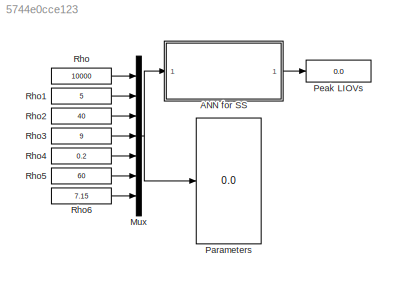
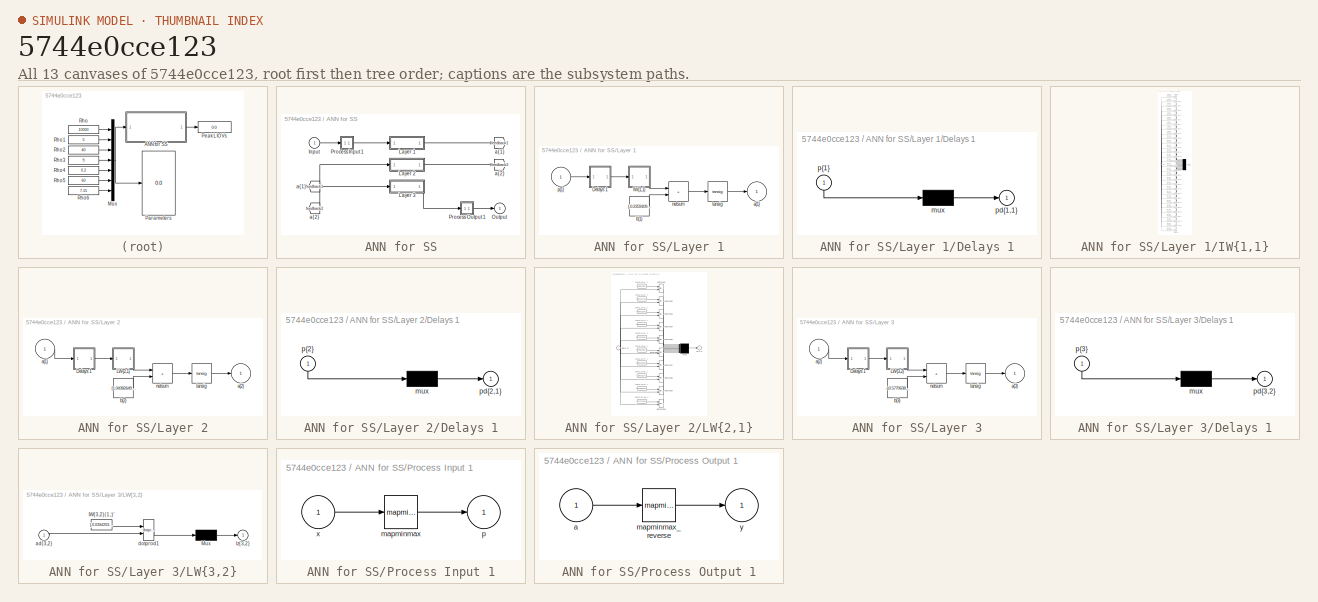
[diagram: thumbnail index - all 13 canvases of the model, root first then tree order]
MODEL slx_5744e0cce123
KIND model
CONFIG AbsTol = auto
CONFIG EnableMultiTasking = off
CONFIG FixedStep = auto
CONFIG MaxStep = auto
CONFIG MinStep = auto
CONFIG RelTol = 1e-3
CONFIG SampleTimeConstraint = Unconstrained
CONFIG Solver = VariableStepAuto
CONFIG SolverName = VariableStepAuto
CONFIG StartTime = 0.0
CONFIG StopTime = 10.0
BLOCK [SubSystem] ANN for SS
  Ports = [1, 1]
  RequestExecContextInheritance = off
BLOCK [From] ANN for SS/ a{1} 
  GotoTag = feedback1
BLOCK [From] ANN for SS/ a{2} 
  GotoTag = feedback2
BLOCK [Inport] ANN for SS/Input
  PortDimensions = 7
BLOCK [SubSystem] ANN for SS/Layer 1
  Ports = [1, 1]
  RequestExecContextInheritance = off
BLOCK [SubSystem] ANN for SS/Layer 1/Delays 1
  Ports = [1, 1]
  RequestExecContextInheritance = off
BLOCK [Mux] ANN for SS/Layer 1/Delays 1/mux
  Inputs = 1
  Ports = [1, 1]
BLOCK [Outport] ANN for SS/Layer 1/Delays 1/pd{1,1}
BLOCK [Inport] ANN for SS/Layer 1/Delays 1/p{1}
  NameLocation = left
  PortDimensions = 7
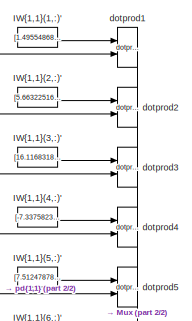
[diagram: ANN for SS/Layer 1/IW{1,1} - part 1/2, top center region]
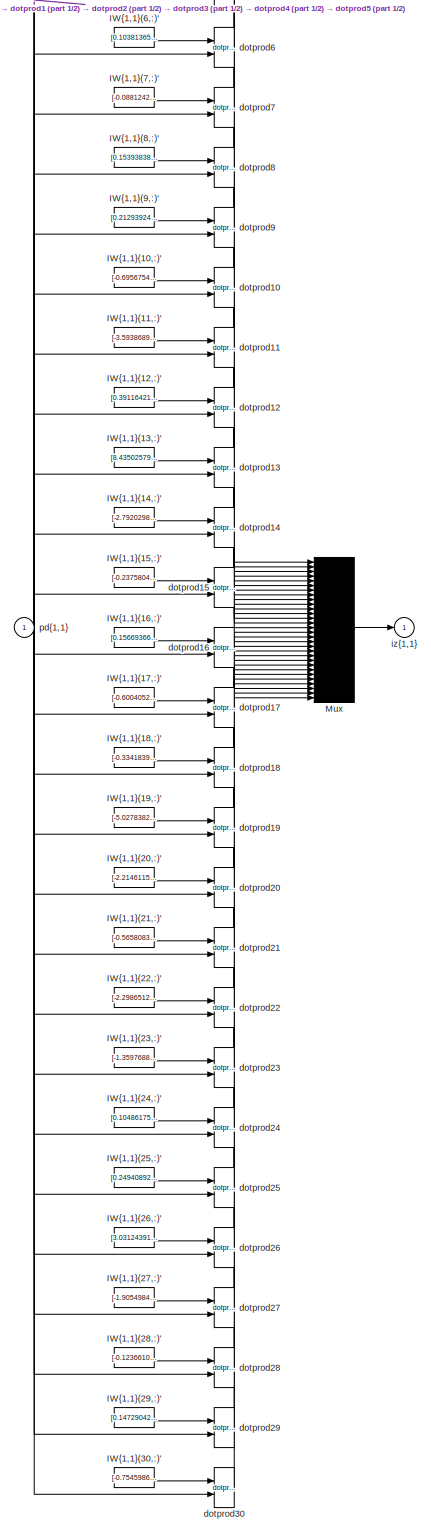
[diagram: ANN for SS/Layer 1/IW{1,1} - part 2/2, most of the canvas]
BLOCK [SubSystem] ANN for SS/Layer 1/IW{1,1}
  Ports = [1, 1]
  RequestExecContextInheritance = off
BLOCK [Constant] ANN for SS/Layer 1/IW{1,1}/IW{1,1}(1,:)'
  Value = [1.49554868627087689247900925693102180957794189453125;0.00806494636037557825758437246577159385196864604949951171875;-0.1785777999905269475267033385534887202084064483642578125;-0.05977408969179176523311980417929589748382568359375;0.0028275709148284059075983964959277727757580578327178955078125;-0.323414127154260933050267112776055000722408294677734375;-0.0067737887125604127891431716079750913195312023...<+13ch>
BLOCK [Constant] ANN for SS/Layer 1/IW{1,1}/IW{1,1}(10,:)'
  Value = [-0.69567541314679759434369543669163249433040618896484375;-0.0251686472821097857732741687186717172153294086456298828125;-1.013679418077692684363455555285327136516571044921875;-0.0856263166234662864706450591256725601851940155029296875;-0.00051681621427435175432363312353345463634468615055084228515625;0.10360973151981951734246223395530250854790210723876953125;-0.00249451759371644007576285240190827607...<+24ch>
BLOCK [Constant] ANN for SS/Layer 1/IW{1,1}/IW{1,1}(11,:)'
  Value = [-3.593868953012437028604608713067136704921722412109375;7.7088835146257235209077407489530742168426513671875;-5.18097107970652981379089396796189248561859130859375;-8.65860252163110288847747142426669597625732421875;-5.17506366085313107561205470119602978229522705078125;-42.68812281959453258650682982988655567169189453125;5.36331997052391074021215899847447872161865234375]
BLOCK [Constant] ANN for SS/Layer 1/IW{1,1}/IW{1,1}(12,:)'
  Value = [0.3911642194506768088757553414325229823589324951171875;2.277417365472901078504719407646916806697845458984375;-1.6553152046329699942361912690103054046630859375;4.412993157645775710307134431786835193634033203125;0.007453174649690329223172824413268244825303554534912109375;5.1606292570775877948108245618641376495361328125;-0.0230133484376430740014907172508173971436917781829833984375]
BLOCK [Constant] ANN for SS/Layer 1/IW{1,1}/IW{1,1}(13,:)'
  Value = [8.4350257988312034029831920634023845195770263671875;20.574373844268318833883313345722854137420654296875;0.827490009074045129722208002931438386440277099609375;2.27667065631839360406729610986076295375823974609375;-0.029510110666101131704497362306938157416880130767822265625;7.92627507952247878364460120792500674724578857421875;0.0007694502747248401809676554563566241995431482791900634765625]
BLOCK [Constant] ANN for SS/Layer 1/IW{1,1}/IW{1,1}(14,:)'
  Value = [-2.79202985676071335774395265616476535797119140625;-0.043632145622370006876611370216778595931828022003173828125;-0.0178253808091444025663019345984139363281428813934326171875;0.00988472915457981084197403021107675158418715000152587890625;-0.00530024832296027183231590385048548341728746891021728515625;0.303023868962135234372823333615087904036045074462890625;-0.1255826455788177642425296198780415579676...<+15ch>
BLOCK [Constant] ANN for SS/Layer 1/IW{1,1}/IW{1,1}(15,:)'
  Value = [-0.2375804274961572648550145459012128412723541259765625;0.09495397157337166771373659912569564767181873321533203125;0.1476334013805371825345247316363384015858173370361328125;0.008858774727746814015016951771031017415225505828857421875;-0.0013613173083243204110337476464565042988397181034088134765625;2.848720583638396419701166450977325439453125;-0.00579125994157197402506520589327010384295135736465454...<+8ch>
BLOCK [Constant] ANN for SS/Layer 1/IW{1,1}/IW{1,1}(16,:)'
  Value = [0.156693668597627067118338572981883771717548370361328125;-0.030923619533131392611569054906794917769730091094970703125;-0.038054647134532361418823853682624758221209049224853515625;-0.074441734742047016570865025641978718340396881103515625;0.0013780150734819655335139376717279446893371641635894775390625;-0.487515791652567365144221867012674920260906219482421875;-0.0018296230537174849439113755167340968...<+26ch>
BLOCK [Constant] ANN for SS/Layer 1/IW{1,1}/IW{1,1}(17,:)'
  Value = [-0.60040524257137606323198042446165345609188079833984375;-0.03939743917869482914273504547963966615498065948486328125;0.1077889585008917350261725687232683412730693817138671875;0.220991437678643876107997812141547910869121551513671875;-0.00341598206629528146349716877239188761450350284576416015625;0.12049729557657580525376062041686964221298694610595703125;0.0027690454142066632525764902084119967184960...<+16ch>
BLOCK [Constant] ANN for SS/Layer 1/IW{1,1}/IW{1,1}(18,:)'
  Value = [-0.334183949566122240337762150375056080520153045654296875;-0.70978718792663830772227129273233003914356231689453125;0.496101295671813158350005323882214725017547607421875;2.305363388476006303307030975702218711376190185546875;0.0034401262450475637855173971502154017798602581024169921875;-2.073680934710261158926414282177574932575225830078125;-0.009452679884372938018399779025457974057644605636596679687...<+2ch>
BLOCK [Constant] ANN for SS/Layer 1/IW{1,1}/IW{1,1}(19,:)'
  Value = [-5.027838224459326710302775609306991100311279296875;1.817329632481860191006717286654748022556304931640625;3.902312320774697251835050337831489741802215576171875;8.319395091995186675148943322710692882537841796875;0.00921270061493954274534079473824021988548338413238525390625;-5.29645984274446579576078875106759369373321533203125;-9.2111627622697849204769227071665227413177490234375]
BLOCK [Constant] ANN for SS/Layer 1/IW{1,1}/IW{1,1}(2,:)'
  Value = [5.66322516267212439089462350239045917987823486328125;-6.12100885813496287113366634002886712551116943359375;0.6109010973920054876629137652344070374965667724609375;0.29209878665008570663985665305517613887786865234375;-0.0303773660627886903096150916780970874242484569549560546875;2.17950106258131715009085382916964590549468994140625;0.15144494192599922133268819379736669361591339111328125]
BLOCK [Constant] ANN for SS/Layer 1/IW{1,1}/IW{1,1}(20,:)'
  Value = [-2.214611504141789755095715008792467415332794189453125;-0.04382559503240994469575042558062705211341381072998046875;-0.036611195210878737238413549448523554019629955291748046875;-0.0020044579718747506692777538006566828698851168155670166015625;0.004788132028868048208070096194433062919415533542633056640625;-0.15361088809467926541429960707318969070911407470703125;0.002383569240003513903247700511656148...<+24ch>
BLOCK [Constant] ANN for SS/Layer 1/IW{1,1}/IW{1,1}(21,:)'
  Value = [-0.56580834933463630687100476279738359153270721435546875;3.4446381460767749871365595026873052120208740234375;1.195300154564093997322515861014835536479949951171875;-2.366396641942567935501529063913039863109588623046875;-0.0182693197072140191272726639226675615645945072174072265625;-2.7489822670579453500749878003261983394622802734375;0.042783802840655672794500929967398406006395816802978515625]
BLOCK [Constant] ANN for SS/Layer 1/IW{1,1}/IW{1,1}(22,:)'
  Value = [-2.298651270892893894171038482454605400562286376953125;-0.036947625014021885647697018839608062990009784698486328125;-0.039273323955870333146211947905612760223448276519775390625;0.049478192678779724100746051362875732593238353729248046875;0.005030393981499387164035841379927660454995930194854736328125;0.08667694416601146034651037552976049482822418212890625;0.00330521545551510330385180935763855814002...<+19ch>
BLOCK [Constant] ANN for SS/Layer 1/IW{1,1}/IW{1,1}(23,:)'
  Value = [-1.3597688942989216709378297309740446507930755615234375;-0.2006502188761534466454605762919527478516101837158203125;0.271984216658221422679986289949738420546054840087890625;0.0288614636510402429447896821557151270098984241485595703125;0.0035487876800090502327211794408867717720568180084228515625;0.7168241535125481345147591127897612750530242919921875;0.056244593836548145704412604573008138686418533325...<+8ch>
BLOCK [Constant] ANN for SS/Layer 1/IW{1,1}/IW{1,1}(24,:)'
  Value = [0.10486175347694083603844461549670086242258548736572265625;-0.05779780108128484972240812567179091274738311767578125;0.9044081873358285061925698755658231675624847412109375;0.007322189939422030398319396482520460267551243305206298828125;-7.5818824584100407413568556425076394589268602430820465087890625e-05;-0.10698899294501994228223651361986412666738033294677734375;0.0025384283780816906464505855467450...<+27ch>
BLOCK [Constant] ANN for SS/Layer 1/IW{1,1}/IW{1,1}(25,:)'
  Value = [0.2494089279430286298921970455921837128698825836181640625;4.4952637199478306939681715448386967182159423828125;5.5312892990272199966739208321087062358856201171875;0.043830472809258225197481806389987468719482421875;-0.0024564433676137610411405187704758645850233733654022216796875;-0.015100593870586827283108988240201142616569995880126953125;0.0211321506586187139731247697227445314638316631317138671875...<+1ch>
BLOCK [Constant] ANN for SS/Layer 1/IW{1,1}/IW{1,1}(26,:)'
  Value = [3.031243912774581161784226424060761928558349609375;0.050755711076085056887574609163493732921779155731201171875;0.0137863781761874727715966315599871450103819370269775390625;-0.014675725525736982302049682402866892516613006591796875;0.005189198823812253558163121169855003245174884796142578125;-0.36954923390439919916872213434544391930103302001953125;0.13870181522131785900597833460778929293155670166015...<+4ch>
BLOCK [Constant] ANN for SS/Layer 1/IW{1,1}/IW{1,1}(27,:)'
  Value = [-1.905498492454689607455975419725291430950164794921875;-10.3525333311431193550333773600868880748748779296875;-11.7669072051402689993437888915650546550750732421875;-5.94959042984753683214194097672589123249053955078125;-0.01260853272741300525050522907122285687364637851715087890625;-2.264294611408657953433021248201839625835418701171875;0.0195814561505364380378235722446333966217935085296630859375]
BLOCK [Constant] ANN for SS/Layer 1/IW{1,1}/IW{1,1}(28,:)'
  Value = [-0.123661022764746497681898063092376105487346649169921875;0.0237797196834568236312179578817449510097503662109375;0.0219958569300194028972583737413515336811542510986328125;0.10242674839646324913555730518055497668683528900146484375;-0.0009736894125372866880263611477630547597073018550872802734375;0.3736605107473083275948511072783730924129486083984375;0.00061620999424536089528192661646244232542812824...<+13ch>
BLOCK [Constant] ANN for SS/Layer 1/IW{1,1}/IW{1,1}(29,:)'
  Value = [0.1472904263510081135368778859628946520388126373291015625;-0.319248871641658882314374068300821818411350250244140625;-0.348007407029615745130968207377009093761444091796875;0.0308074929647929908471670756853200145997107028961181640625;-0.0018536410533082476291555362735152812092565000057220458984375;-0.139638304097367493827874795897514559328556060791015625;0.011221358081694835645558683268063759896904...<+17ch>
BLOCK [Constant] ANN for SS/Layer 1/IW{1,1}/IW{1,1}(3,:)'
  Value = [16.11683187159434993418472004123032093048095703125;-6.27773040884411681616938949446193873882293701171875;15.4304490810079126816845018765889108180999755859375;-0.127348135929513162079018684380571357905864715576171875;-0.221583447404342048780989671286079101264476776123046875;-6.786623706181462267750248429365456104278564453125;0.1289792973670374209849143198880483396351337432861328125]
BLOCK [Constant] ANN for SS/Layer 1/IW{1,1}/IW{1,1}(30,:)'
  Value = [-0.75459860303721415508704239982762373983860015869140625;-3.218821680767816939550129973213188350200653076171875;4.8100766134366903514774094219319522380828857421875;-9.667813125381830019478002213872969150543212890625;-2.571862296036548922728570687468163669109344482421875;-2.639825523102522719653961758012883365154266357421875;8.6450965106753674405126730562187731266021728515625]
BLOCK [Constant] ANN for SS/Layer 1/IW{1,1}/IW{1,1}(4,:)'
  Value = [-7.33758239026838854357492891722358763217926025390625;-19.972028481665180521531510748900473117828369140625;16.019672463349248658914802945218980312347412109375;9.1618881680668895484132008277811110019683837890625;-15.509332718210853130358373164199292659759521484375;7.944514263367640438673333846963942050933837890625;23.293163609171958938759416923858225345611572265625]
BLOCK [Constant] ANN for SS/Layer 1/IW{1,1}/IW{1,1}(5,:)'
  Value = [7.51247878322758300129180497606284916400909423828125;0.045464768307096385668852889239133219234645366668701171875;-0.00178027459695432872625875386773941499995999038219451904296875;-0.03078857718710004132134372412110678851604461669921875;0.037033787499848737356789030172876664437353610992431640625;3.92310658266647838132712422520853579044342041015625;-0.27245052810403003196171312083606608211994171142...<+7ch>
BLOCK [Constant] ANN for SS/Layer 1/IW{1,1}/IW{1,1}(6,:)'
  Value = [0.10381365303922839016248502730377367697656154632568359375;-0.01994738498192283326915230645681731402873992919921875;-0.0164303977758037990375417081168052391149103641510009765625;-0.12299102269465035652817874733955250121653079986572265625;0.000859951951773019521683971699843596070422790944576263427734375;-0.31888476714530711308981381080229766666889190673828125;-0.00038420759338323340770920966136259...<+29ch>
BLOCK [Constant] ANN for SS/Layer 1/IW{1,1}/IW{1,1}(7,:)'
  Value = [-0.08812420278099640513769230665275244973599910736083984375;-0.149246792134495376291880575081449933350086212158203125;-0.08221010931740353744334726115994271822273731231689453125;0.010648734548538658917227195388477412052452564239501953125;0.000711968153606370893031474178513917649979703128337860107421875;1.4580611080639347409970696389791555702686309814453125;0.00331136493010659180638577403499311913...<+24ch>
BLOCK [Constant] ANN for SS/Layer 1/IW{1,1}/IW{1,1}(8,:)'
  Value = [0.1539383878929213300690292953731841407716274261474609375;0.6351418926519585284040658734738826751708984375;-5.74947269254340387334423212450928986072540283203125;-0.022295848778761222230837546476323041133582592010498046875;-0.0056235683443172368445317488294676877558231353759765625;0.08264639804833347203061322261419263668358325958251953125;-0.01163944769190147082715824922161118593066930770874023437...<+2ch>
BLOCK [Constant] ANN for SS/Layer 1/IW{1,1}/IW{1,1}(9,:)'
  Value = [0.2129392440066982528090733239878318272531032562255859375;0.08377999291040738594205095068900845944881439208984375;-0.075744145746537150376553881869767792522907257080078125;-0.250953675653530716704864289567922241985797882080078125;0.0002462091802751895249466718151865052277571521699428558349609375;-1.055138415923056793843670675414614379405975341796875;0.006141537631832125546105238811378512764349579...<+15ch>
BLOCK [Mux] ANN for SS/Layer 1/IW{1,1}/Mux
  Inputs = 30
  Ports = [30, 1]
BLOCK [Reference] ANN for SS/Layer 1/IW{1,1}/dotprod1  REF=neural/Weight Functions/dotprod
  Ports = [2, 1]
  SourceBlock = neural/Weight Functions/dotprod
  SourceProductBaseCode = NN
  SourceType = DOTPROD
BLOCK [Reference] ANN for SS/Layer 1/IW{1,1}/dotprod10  REF=neural/Weight Functions/dotprod
  Ports = [2, 1]
  SourceBlock = neural/Weight Functions/dotprod
  SourceProductBaseCode = NN
  SourceType = DOTPROD
BLOCK [Reference] ANN for SS/Layer 1/IW{1,1}/dotprod11  REF=neural/Weight Functions/dotprod
  Ports = [2, 1]
  SourceBlock = neural/Weight Functions/dotprod
  SourceProductBaseCode = NN
  SourceType = DOTPROD
BLOCK [Reference] ANN for SS/Layer 1/IW{1,1}/dotprod12  REF=neural/Weight Functions/dotprod
  Ports = [2, 1]
  SourceBlock = neural/Weight Functions/dotprod
  SourceProductBaseCode = NN
  SourceType = DOTPROD
BLOCK [Reference] ANN for SS/Layer 1/IW{1,1}/dotprod13  REF=neural/Weight Functions/dotprod
  Ports = [2, 1]
  SourceBlock = neural/Weight Functions/dotprod
  SourceProductBaseCode = NN
  SourceType = DOTPROD
BLOCK [Reference] ANN for SS/Layer 1/IW{1,1}/dotprod14  REF=neural/Weight Functions/dotprod
  Ports = [2, 1]
  SourceBlock = neural/Weight Functions/dotprod
  SourceProductBaseCode = NN
  SourceType = DOTPROD
BLOCK [Reference] ANN for SS/Layer 1/IW{1,1}/dotprod15  REF=neural/Weight Functions/dotprod
  Ports = [2, 1]
  SourceBlock = neural/Weight Functions/dotprod
  SourceProductBaseCode = NN
  SourceType = DOTPROD
BLOCK [Reference] ANN for SS/Layer 1/IW{1,1}/dotprod16  REF=neural/Weight Functions/dotprod
  Ports = [2, 1]
  SourceBlock = neural/Weight Functions/dotprod
  SourceProductBaseCode = NN
  SourceType = DOTPROD
BLOCK [Reference] ANN for SS/Layer 1/IW{1,1}/dotprod17  REF=neural/Weight Functions/dotprod
  Ports = [2, 1]
  SourceBlock = neural/Weight Functions/dotprod
  SourceProductBaseCode = NN
  SourceType = DOTPROD
BLOCK [Reference] ANN for SS/Layer 1/IW{1,1}/dotprod18  REF=neural/Weight Functions/dotprod
  Ports = [2, 1]
  SourceBlock = neural/Weight Functions/dotprod
  SourceProductBaseCode = NN
  SourceType = DOTPROD
BLOCK [Reference] ANN for SS/Layer 1/IW{1,1}/dotprod19  REF=neural/Weight Functions/dotprod
  Ports = [2, 1]
  SourceBlock = neural/Weight Functions/dotprod
  SourceProductBaseCode = NN
  SourceType = DOTPROD
BLOCK [Reference] ANN for SS/Layer 1/IW{1,1}/dotprod2  REF=neural/Weight Functions/dotprod
  Ports = [2, 1]
  SourceBlock = neural/Weight Functions/dotprod
  SourceProductBaseCode = NN
  SourceType = DOTPROD
BLOCK [Reference] ANN for SS/Layer 1/IW{1,1}/dotprod20  REF=neural/Weight Functions/dotprod
  Ports = [2, 1]
  SourceBlock = neural/Weight Functions/dotprod
  SourceProductBaseCode = NN
  SourceType = DOTPROD
BLOCK [Reference] ANN for SS/Layer 1/IW{1,1}/dotprod21  REF=neural/Weight Functions/dotprod
  Ports = [2, 1]
  SourceBlock = neural/Weight Functions/dotprod
  SourceProductBaseCode = NN
  SourceType = DOTPROD
BLOCK [Reference] ANN for SS/Layer 1/IW{1,1}/dotprod22  REF=neural/Weight Functions/dotprod
  Ports = [2, 1]
  SourceBlock = neural/Weight Functions/dotprod
  SourceProductBaseCode = NN
  SourceType = DOTPROD
BLOCK [Reference] ANN for SS/Layer 1/IW{1,1}/dotprod23  REF=neural/Weight Functions/dotprod
  Ports = [2, 1]
  SourceBlock = neural/Weight Functions/dotprod
  SourceProductBaseCode = NN
  SourceType = DOTPROD
BLOCK [Reference] ANN for SS/Layer 1/IW{1,1}/dotprod24  REF=neural/Weight Functions/dotprod
  Ports = [2, 1]
  SourceBlock = neural/Weight Functions/dotprod
  SourceProductBaseCode = NN
  SourceType = DOTPROD
BLOCK [Reference] ANN for SS/Layer 1/IW{1,1}/dotprod25  REF=neural/Weight Functions/dotprod
  Ports = [2, 1]
  SourceBlock = neural/Weight Functions/dotprod
  SourceProductBaseCode = NN
  SourceType = DOTPROD
BLOCK [Reference] ANN for SS/Layer 1/IW{1,1}/dotprod26  REF=neural/Weight Functions/dotprod
  Ports = [2, 1]
  SourceBlock = neural/Weight Functions/dotprod
  SourceProductBaseCode = NN
  SourceType = DOTPROD
BLOCK [Reference] ANN for SS/Layer 1/IW{1,1}/dotprod27  REF=neural/Weight Functions/dotprod
  Ports = [2, 1]
  SourceBlock = neural/Weight Functions/dotprod
  SourceProductBaseCode = NN
  SourceType = DOTPROD
BLOCK [Reference] ANN for SS/Layer 1/IW{1,1}/dotprod28  REF=neural/Weight Functions/dotprod
  Ports = [2, 1]
  SourceBlock = neural/Weight Functions/dotprod
  SourceProductBaseCode = NN
  SourceType = DOTPROD
BLOCK [Reference] ANN for SS/Layer 1/IW{1,1}/dotprod29  REF=neural/Weight Functions/dotprod
  Ports = [2, 1]
  SourceBlock = neural/Weight Functions/dotprod
  SourceProductBaseCode = NN
  SourceType = DOTPROD
BLOCK [Reference] ANN for SS/Layer 1/IW{1,1}/dotprod3  REF=neural/Weight Functions/dotprod
  Ports = [2, 1]
  SourceBlock = neural/Weight Functions/dotprod
  SourceProductBaseCode = NN
  SourceType = DOTPROD
BLOCK [Reference] ANN for SS/Layer 1/IW{1,1}/dotprod30  REF=neural/Weight Functions/dotprod
  Ports = [2, 1]
  SourceBlock = neural/Weight Functions/dotprod
  SourceProductBaseCode = NN
  SourceType = DOTPROD
BLOCK [Reference] ANN for SS/Layer 1/IW{1,1}/dotprod4  REF=neural/Weight Functions/dotprod
  Ports = [2, 1]
  SourceBlock = neural/Weight Functions/dotprod
  SourceProductBaseCode = NN
  SourceType = DOTPROD
BLOCK [Reference] ANN for SS/Layer 1/IW{1,1}/dotprod5  REF=neural/Weight Functions/dotprod
  Ports = [2, 1]
  SourceBlock = neural/Weight Functions/dotprod
  SourceProductBaseCode = NN
  SourceType = DOTPROD
BLOCK [Reference] ANN for SS/Layer 1/IW{1,1}/dotprod6  REF=neural/Weight Functions/dotprod
  Ports = [2, 1]
  SourceBlock = neural/Weight Functions/dotprod
  SourceProductBaseCode = NN
  SourceType = DOTPROD
BLOCK [Reference] ANN for SS/Layer 1/IW{1,1}/dotprod7  REF=neural/Weight Functions/dotprod
  Ports = [2, 1]
  SourceBlock = neural/Weight Functions/dotprod
  SourceProductBaseCode = NN
  SourceType = DOTPROD
BLOCK [Reference] ANN for SS/Layer 1/IW{1,1}/dotprod8  REF=neural/Weight Functions/dotprod
  Ports = [2, 1]
  SourceBlock = neural/Weight Functions/dotprod
  SourceProductBaseCode = NN
  SourceType = DOTPROD
BLOCK [Reference] ANN for SS/Layer 1/IW{1,1}/dotprod9  REF=neural/Weight Functions/dotprod
  Ports = [2, 1]
  SourceBlock = neural/Weight Functions/dotprod
  SourceProductBaseCode = NN
  SourceType = DOTPROD
BLOCK [Outport] ANN for SS/Layer 1/IW{1,1}/iz{1,1}
BLOCK [Inport] ANN for SS/Layer 1/IW{1,1}/pd{1,1}
  PortDimensions = 7
BLOCK [Outport] ANN for SS/Layer 1/a{1}
  InitialOutput = [0;0;0;0;0;0;0;0;0;0;0;0;0;0;0;0;0;0;0;0;0;0;0;0;0;0;0;0;0;0]
BLOCK [Constant] ANN for SS/Layer 1/b{1}
  Value = [-0.235910918970484662082753857248462736606597900390625;-1.4219760800927023769446577716735191643238067626953125;-15.2151872164939536702377154142595827579498291015625;19.2422149276300018527763313613831996917724609375;10.955083410908184049503688584081828594207763671875;-0.327499748631396858655762116541154682636260986328125;1.3797754291312340768627109355293214321136474609375;-5.3489889780558019793943...<+1233ch>
BLOCK [Sum] ANN for SS/Layer 1/netsum
  IconShape = rectangular
  InputSameDT = on
  Inputs = 2
  OutDataTypeStr = Inherit: Same as first input
  Ports = [2, 1]
  SaturateOnIntegerOverflow = on
BLOCK [Inport] ANN for SS/Layer 1/p{1}
  PortDimensions = 7
BLOCK [Reference] ANN for SS/Layer 1/tansig  REF=neural/Transfer Functions/tansig
  Ports = [1, 1]
  SourceBlock = neural/Transfer Functions/tansig
  SourceProductBaseCode = NN
  SourceType = TANSIG
BLOCK [SubSystem] ANN for SS/Layer 2
  Ports = [1, 1]
  RequestExecContextInheritance = off
BLOCK [SubSystem] ANN for SS/Layer 2/Delays 1
  Ports = [1, 1]
  RequestExecContextInheritance = off
BLOCK [Mux] ANN for SS/Layer 2/Delays 1/mux
  Inputs = 1
  Ports = [1, 1]
BLOCK [Outport] ANN for SS/Layer 2/Delays 1/pd{2,1}
BLOCK [Inport] ANN for SS/Layer 2/Delays 1/p{2}
  NameLocation = left
  PortDimensions = 30
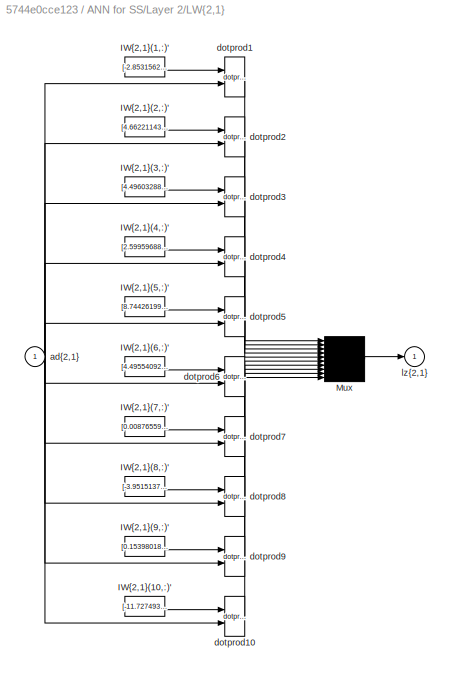
BLOCK [SubSystem] ANN for SS/Layer 2/LW{2,1}
  Ports = [1, 1]
  RequestExecContextInheritance = off
BLOCK [Constant] ANN for SS/Layer 2/LW{2,1}/IW{2,1}(1,:)'
  Value = [-2.853156258780404019859133768477477133274078369140625;-0.1026691830964931162473163794857100583612918853759765625;-1.275256679580755392322544139460660517215728759765625;-0.0166714696396539664713376538429656648077070713043212890625;-0.3426718447108247911359057980007492005825042724609375;6.16014385487027826826533782877959311008453369140625;1.33065413400041610003654568572528660297393798828125;0.8300...<+1273ch>
BLOCK [Constant] ANN for SS/Layer 2/LW{2,1}/IW{2,1}(10,:)'
  Value = [-11.7274939872978425370320110232569277286529541015625;-0.004414783782780464828354727302439641789533197879791259765625;-9.7318584864202275497291338979266583919525146484375;0.00091182929779463580723108950820687823579646646976470947265625;-0.0307112504419843231062703381439860095269978046417236328125;-2.615666930582442706310075664077885448932647705078125;0.08836439570318327385578527355391997843980789...<+1354ch>
BLOCK [Constant] ANN for SS/Layer 2/LW{2,1}/IW{2,1}(2,:)'
  Value = [4.6622114336972142467629964812658727169036865234375;-5.23013113772971127701794102904386818408966064453125;-0.80637080055020982083391345440759323537349700927734375;12.36066948501846951558036380447447299957275390625;-10.971025797858995787237290642224252223968505859375;-0.0191556251510717479025203147102729417383670806884765625;4.24596726531306245533414767123758792877197265625;7.538531819490904339886...<+1222ch>
BLOCK [Constant] ANN for SS/Layer 2/LW{2,1}/IW{2,1}(3,:)'
  Value = [4.49603288961518021693564151064492762088775634765625;0.142991561423157609311829219223000109195709228515625;-0.0020556502903730316210439976742918588570319116115570068359375;4.19375163487967361091758589086708752802223898470401763916015625e-05;10.054414567994317764032530249096453189849853515625;7.1609233868907011810733820311725139617919921875;-15.9476161634836746117116490495391190052032470703125;0.4...<+1278ch>
BLOCK [Constant] ANN for SS/Layer 2/LW{2,1}/IW{2,1}(4,:)'
  Value = [2.59959688312526093767473867046646773815155029296875;-14.8720461405588508796427049674093723297119140625;0.82097865517990609163234694278798997402191162109375;-0.026367115053857061168773867620984674431383609771728515625;5.339127691753322579870655317790806293487548828125;-6.9972188433717139588452482712455093860626220703125;5.17521781800965730013786014751531183719635009765625;-1.222095852315344455263...<+1230ch>
BLOCK [Constant] ANN for SS/Layer 2/LW{2,1}/IW{2,1}(5,:)'
  Value = [8.7442619946240807138337913784198462963104248046875;-0.662041617098784396233668303466401994228363037109375;-1.221994764357258844711395795457065105438232421875;0.365838169267583890320594264267128892242908477783203125;4.9432676602920491149006920750252902507781982421875;-2.193223710261219761008533168933354318141937255859375;8.7699346863394538331704097799956798553466796875;-2.418163701547158428439843...<+1206ch>
BLOCK [Constant] ANN for SS/Layer 2/LW{2,1}/IW{2,1}(6,:)'
  Value = [4.4955409260587533282205185969360172748565673828125;0.1431537620759889273269749310202314518392086029052734375;-0.001962231950858321812003470796526016783900558948516845703125;0.000102169277801985927396459519211902033930527977645397186279296875;2.52795306641441452910612497362308204174041748046875;6.944513620046336654922924935817718505859375;-15.9488975538291075650931816198863089084625244140625;0.43...<+1271ch>
BLOCK [Constant] ANN for SS/Layer 2/LW{2,1}/IW{2,1}(7,:)'
  Value = [0.00876559019644300614626519774219559621997177600860595703125;-3.84796166511583201505670992492724735711817629635334014892578125e-05;4.71665299306254386969838865439896835596300661563873291015625e-05;-0.000174402290244651705757028548049447636003606021404266357421875;-0.00563470381349687708671947206084951176308095455169677734375;-1.23041714945566749150884788832627236843109130859375;-0.00696219016673...<+1513ch>
BLOCK [Constant] ANN for SS/Layer 2/LW{2,1}/IW{2,1}(8,:)'
  Value = [-3.95151376134179965760040431632660329341888427734375;-5.8811817366356589076303862384520471096038818359375;3.13151142222966161199337875586934387683868408203125;5.5978507619981296983269203337840735912322998046875;8.1740553609100938814435721724294126033782958984375;3.339863876181686119792857425636611878871917724609375;-5.2518976589041717062400493887253105640411376953125;2.23267510924129641836088921...<+1214ch>
BLOCK [Constant] ANN for SS/Layer 2/LW{2,1}/IW{2,1}(9,:)'
  Value = [0.153980184794537178216700112898251973092555999755859375;-0.00277478882939949551833525021038440172560513019561767578125;-0.00177497969212335438525529607289854538976214826107025146484375;-0.000201674811593112045422782063752720205229707062244415283203125;-1.8037013626778699570962771758786402642726898193359375;-3.715070867799260323494081603712402284145355224609375;-1.56693128970321660098363736324245...<+1348ch>
BLOCK [Mux] ANN for SS/Layer 2/LW{2,1}/Mux
  Inputs = 10
  Ports = [10, 1]
BLOCK [Inport] ANN for SS/Layer 2/LW{2,1}/ad{2,1}
  PortDimensions = 30
BLOCK [Reference] ANN for SS/Layer 2/LW{2,1}/dotprod1  REF=neural/Weight Functions/dotprod
  Ports = [2, 1]
  SourceBlock = neural/Weight Functions/dotprod
  SourceProductBaseCode = NN
  SourceType = DOTPROD
BLOCK [Reference] ANN for SS/Layer 2/LW{2,1}/dotprod10  REF=neural/Weight Functions/dotprod
  Ports = [2, 1]
  SourceBlock = neural/Weight Functions/dotprod
  SourceProductBaseCode = NN
  SourceType = DOTPROD
BLOCK [Reference] ANN for SS/Layer 2/LW{2,1}/dotprod2  REF=neural/Weight Functions/dotprod
  Ports = [2, 1]
  SourceBlock = neural/Weight Functions/dotprod
  SourceProductBaseCode = NN
  SourceType = DOTPROD
BLOCK [Reference] ANN for SS/Layer 2/LW{2,1}/dotprod3  REF=neural/Weight Functions/dotprod
  Ports = [2, 1]
  SourceBlock = neural/Weight Functions/dotprod
  SourceProductBaseCode = NN
  SourceType = DOTPROD
BLOCK [Reference] ANN for SS/Layer 2/LW{2,1}/dotprod4  REF=neural/Weight Functions/dotprod
  Ports = [2, 1]
  SourceBlock = neural/Weight Functions/dotprod
  SourceProductBaseCode = NN
  SourceType = DOTPROD
BLOCK [Reference] ANN for SS/Layer 2/LW{2,1}/dotprod5  REF=neural/Weight Functions/dotprod
  Ports = [2, 1]
  SourceBlock = neural/Weight Functions/dotprod
  SourceProductBaseCode = NN
  SourceType = DOTPROD
BLOCK [Reference] ANN for SS/Layer 2/LW{2,1}/dotprod6  REF=neural/Weight Functions/dotprod
  Ports = [2, 1]
  SourceBlock = neural/Weight Functions/dotprod
  SourceProductBaseCode = NN
  SourceType = DOTPROD
BLOCK [Reference] ANN for SS/Layer 2/LW{2,1}/dotprod7  REF=neural/Weight Functions/dotprod
  Ports = [2, 1]
  SourceBlock = neural/Weight Functions/dotprod
  SourceProductBaseCode = NN
  SourceType = DOTPROD
BLOCK [Reference] ANN for SS/Layer 2/LW{2,1}/dotprod8  REF=neural/Weight Functions/dotprod
  Ports = [2, 1]
  SourceBlock = neural/Weight Functions/dotprod
  SourceProductBaseCode = NN
  SourceType = DOTPROD
BLOCK [Reference] ANN for SS/Layer 2/LW{2,1}/dotprod9  REF=neural/Weight Functions/dotprod
  Ports = [2, 1]
  SourceBlock = neural/Weight Functions/dotprod
  SourceProductBaseCode = NN
  SourceType = DOTPROD
BLOCK [Outport] ANN for SS/Layer 2/LW{2,1}/lz{2,1}
BLOCK [Inport] ANN for SS/Layer 2/a{1} 
  PortDimensions = 30
BLOCK [Outport] ANN for SS/Layer 2/a{2}
  InitialOutput = [0;0;0;0;0;0;0;0;0;0]
BLOCK [Constant] ANN for SS/Layer 2/b{2}
  Value = [1.043826497897922589430663720122538506984710693359375;-14.2044125305648893942134236567653715610504150390625;3.92961486034806117828566129901446402072906494140625;6.356425516442126166793968877755105495452880859375;-1.204898141700317726332514212117530405521392822265625;13.38854793438468959720921702682971954345703125;0.7038148055903608035777097029495052993297576904296875;-9.74546564512664659218899032...<+131ch>
BLOCK [Sum] ANN for SS/Layer 2/netsum
  IconShape = rectangular
  InputSameDT = on
  Inputs = 2
  OutDataTypeStr = Inherit: Same as first input
  Ports = [2, 1]
  SaturateOnIntegerOverflow = on
BLOCK [Reference] ANN for SS/Layer 2/tansig  REF=neural/Transfer Functions/tansig
  Ports = [1, 1]
  SourceBlock = neural/Transfer Functions/tansig
  SourceProductBaseCode = NN
  SourceType = TANSIG
BLOCK [SubSystem] ANN for SS/Layer 3
  Ports = [1, 1]
  RequestExecContextInheritance = off
BLOCK [SubSystem] ANN for SS/Layer 3/Delays 1
  Ports = [1, 1]
  RequestExecContextInheritance = off
BLOCK [Mux] ANN for SS/Layer 3/Delays 1/mux
  Inputs = 1
  Ports = [1, 1]
BLOCK [Outport] ANN for SS/Layer 3/Delays 1/pd{3,2}
BLOCK [Inport] ANN for SS/Layer 3/Delays 1/p{3}
  NameLocation = left
  PortDimensions = 10
BLOCK [SubSystem] ANN for SS/Layer 3/LW{3,2}
  Ports = [1, 1]
  RequestExecContextInheritance = off
BLOCK [Constant] ANN for SS/Layer 3/LW{3,2}/IW{3,2}(1,:)'
  Value = [-0.039420349501208797049489618302686722017824649810791015625;0.0026026766100730306698063376558138770633377134799957275390625;-21.368569471469218257198008359409868717193603515625;-0.01189785446411842188829677269268358941189944744110107421875;-0.000796864541413190748120332074222460505552589893341064453125;21.368443675299857886784593574702739715576171875;21.563269076820279934736390714533627033233642...<+175ch>
BLOCK [Mux] ANN for SS/Layer 3/LW{3,2}/Mux
  Inputs = 1
  Ports = [1, 1]
BLOCK [Inport] ANN for SS/Layer 3/LW{3,2}/ad{3,2}
  PortDimensions = 10
BLOCK [Reference] ANN for SS/Layer 3/LW{3,2}/dotprod1  REF=neural/Weight Functions/dotprod
  Ports = [2, 1]
  SourceBlock = neural/Weight Functions/dotprod
  SourceProductBaseCode = NN
  SourceType = DOTPROD
BLOCK [Outport] ANN for SS/Layer 3/LW{3,2}/lz{3,2}
BLOCK [Inport] ANN for SS/Layer 3/a{2} 
  PortDimensions = 10
BLOCK [Outport] ANN for SS/Layer 3/a{3}
  InitialOutput = 0
BLOCK [Constant] ANN for SS/Layer 3/b{3}
  Value = -10.5770638451759690923381640459410846233367919921875
BLOCK [Sum] ANN for SS/Layer 3/netsum
  IconShape = rectangular
  InputSameDT = on
  Inputs = 2
  OutDataTypeStr = Inherit: Same as first input
  Ports = [2, 1]
  SaturateOnIntegerOverflow = on
BLOCK [Reference] ANN for SS/Layer 3/tansig  REF=neural/Transfer Functions/tansig
  Ports = [1, 1]
  SourceBlock = neural/Transfer Functions/tansig
  SourceProductBaseCode = NN
  SourceType = TANSIG
BLOCK [Outport] ANN for SS/Output
  InitialOutput = 0
BLOCK [SubSystem] ANN for SS/Process Input 1
  Ports = [1, 1]
  RequestExecContextInheritance = off
BLOCK [Reference] ANN for SS/Process Input 1/mapminmax  REF=neural/Processing Functions/mapminmax
  Ports = [1, 1]
  SourceBlock = neural/Processing Functions/mapminmax
  SourceProductBaseCode = NN
  SourceType = MAPMINMAX Preprocess
BLOCK [Outport] ANN for SS/Process Input 1/p
  PortDimensions = 7
BLOCK [Inport] ANN for SS/Process Input 1/x
  PortDimensions = 7
BLOCK [SubSystem] ANN for SS/Process Output 1
  Ports = [1, 1]
  RequestExecContextInheritance = off
BLOCK [Inport] ANN for SS/Process Output 1/a
  PortDimensions = 1
BLOCK [Reference] ANN for SS/Process Output 1/mapminmax_reverse  REF=neural/Processing Functions/mapminmax_reverse
  Ports = [1, 1]
  SourceBlock = neural/Processing Functions/mapminmax_reverse
  SourceProductBaseCode = NN
  SourceType = MAPMINMAX Reverse Process
BLOCK [Outport] ANN for SS/Process Output 1/y
  PortDimensions = 1
BLOCK [Goto] ANN for SS/a{1}
  GotoTag = feedback1
BLOCK [Goto] ANN for SS/a{2}
  GotoTag = feedback2
BLOCK [Mux] Mux
  DisplayOption = bar
  Inputs = 7
  Ports = [7, 1]
BLOCK [Display] Parameters
  Decimation = 1
  Ports = [1]
BLOCK [Display] Peak LIOVs
  Decimation = 1
  Ports = [1]
BLOCK [Constant] Rho
  SampleTime = 1
  Value = 10000
BLOCK [Constant] Rho1
  SampleTime = 1
  Value = 5
BLOCK [Constant] Rho2
  SampleTime = 1
  Value = 40
BLOCK [Constant] Rho3
  SampleTime = 1
  Value = 9
BLOCK [Constant] Rho4
  SampleTime = 1
  Value = 0.2
BLOCK [Constant] Rho5
  SampleTime = 1
  Value = 60
BLOCK [Constant] Rho6
  SampleTime = 1
  Value = 7.15
LINE ANN for SS/ a{1} :1 -> ANN for SS/Layer 2:1
LINE ANN for SS/ a{2} :1 -> ANN for SS/Layer 3:1
LINE ANN for SS/Input:1 -> ANN for SS/Process Input 1:1
LINE ANN for SS/Layer 1/Delays 1/mux:1 -> ANN for SS/Layer 1/Delays 1/pd{1,1}:1
LINE ANN for SS/Layer 1/Delays 1/p{1}:1 -> ANN for SS/Layer 1/Delays 1/mux:1
LINE ANN for SS/Layer 1/Delays 1:1 -> ANN for SS/Layer 1/IW{1,1}:1
LINE ANN for SS/Layer 1/IW{1,1}/IW{1,1}(1,:)':1 -> ANN for SS/Layer 1/IW{1,1}/dotprod1:1
LINE ANN for SS/Layer 1/IW{1,1}/IW{1,1}(10,:)':1 -> ANN for SS/Layer 1/IW{1,1}/dotprod10:1
LINE ANN for SS/Layer 1/IW{1,1}/IW{1,1}(11,:)':1 -> ANN for SS/Layer 1/IW{1,1}/dotprod11:1
LINE ANN for SS/Layer 1/IW{1,1}/IW{1,1}(12,:)':1 -> ANN for SS/Layer 1/IW{1,1}/dotprod12:1
LINE ANN for SS/Layer 1/IW{1,1}/IW{1,1}(13,:)':1 -> ANN for SS/Layer 1/IW{1,1}/dotprod13:1
LINE ANN for SS/Layer 1/IW{1,1}/IW{1,1}(14,:)':1 -> ANN for SS/Layer 1/IW{1,1}/dotprod14:1
LINE ANN for SS/Layer 1/IW{1,1}/IW{1,1}(15,:)':1 -> ANN for SS/Layer 1/IW{1,1}/dotprod15:1
LINE ANN for SS/Layer 1/IW{1,1}/IW{1,1}(16,:)':1 -> ANN for SS/Layer 1/IW{1,1}/dotprod16:1
LINE ANN for SS/Layer 1/IW{1,1}/IW{1,1}(17,:)':1 -> ANN for SS/Layer 1/IW{1,1}/dotprod17:1
LINE ANN for SS/Layer 1/IW{1,1}/IW{1,1}(18,:)':1 -> ANN for SS/Layer 1/IW{1,1}/dotprod18:1
LINE ANN for SS/Layer 1/IW{1,1}/IW{1,1}(19,:)':1 -> ANN for SS/Layer 1/IW{1,1}/dotprod19:1
LINE ANN for SS/Layer 1/IW{1,1}/IW{1,1}(2,:)':1 -> ANN for SS/Layer 1/IW{1,1}/dotprod2:1
LINE ANN for SS/Layer 1/IW{1,1}/IW{1,1}(20,:)':1 -> ANN for SS/Layer 1/IW{1,1}/dotprod20:1
LINE ANN for SS/Layer 1/IW{1,1}/IW{1,1}(21,:)':1 -> ANN for SS/Layer 1/IW{1,1}/dotprod21:1
LINE ANN for SS/Layer 1/IW{1,1}/IW{1,1}(22,:)':1 -> ANN for SS/Layer 1/IW{1,1}/dotprod22:1
LINE ANN for SS/Layer 1/IW{1,1}/IW{1,1}(23,:)':1 -> ANN for SS/Layer 1/IW{1,1}/dotprod23:1
LINE ANN for SS/Layer 1/IW{1,1}/IW{1,1}(24,:)':1 -> ANN for SS/Layer 1/IW{1,1}/dotprod24:1
LINE ANN for SS/Layer 1/IW{1,1}/IW{1,1}(25,:)':1 -> ANN for SS/Layer 1/IW{1,1}/dotprod25:1
LINE ANN for SS/Layer 1/IW{1,1}/IW{1,1}(26,:)':1 -> ANN for SS/Layer 1/IW{1,1}/dotprod26:1
LINE ANN for SS/Layer 1/IW{1,1}/IW{1,1}(27,:)':1 -> ANN for SS/Layer 1/IW{1,1}/dotprod27:1
LINE ANN for SS/Layer 1/IW{1,1}/IW{1,1}(28,:)':1 -> ANN for SS/Layer 1/IW{1,1}/dotprod28:1
LINE ANN for SS/Layer 1/IW{1,1}/IW{1,1}(29,:)':1 -> ANN for SS/Layer 1/IW{1,1}/dotprod29:1
LINE ANN for SS/Layer 1/IW{1,1}/IW{1,1}(3,:)':1 -> ANN for SS/Layer 1/IW{1,1}/dotprod3:1
LINE ANN for SS/Layer 1/IW{1,1}/IW{1,1}(30,:)':1 -> ANN for SS/Layer 1/IW{1,1}/dotprod30:1
LINE ANN for SS/Layer 1/IW{1,1}/IW{1,1}(4,:)':1 -> ANN for SS/Layer 1/IW{1,1}/dotprod4:1
LINE ANN for SS/Layer 1/IW{1,1}/IW{1,1}(5,:)':1 -> ANN for SS/Layer 1/IW{1,1}/dotprod5:1
LINE ANN for SS/Layer 1/IW{1,1}/IW{1,1}(6,:)':1 -> ANN for SS/Layer 1/IW{1,1}/dotprod6:1
LINE ANN for SS/Layer 1/IW{1,1}/IW{1,1}(7,:)':1 -> ANN for SS/Layer 1/IW{1,1}/dotprod7:1
LINE ANN for SS/Layer 1/IW{1,1}/IW{1,1}(8,:)':1 -> ANN for SS/Layer 1/IW{1,1}/dotprod8:1
LINE ANN for SS/Layer 1/IW{1,1}/IW{1,1}(9,:)':1 -> ANN for SS/Layer 1/IW{1,1}/dotprod9:1
LINE ANN for SS/Layer 1/IW{1,1}/Mux:1 -> ANN for SS/Layer 1/IW{1,1}/iz{1,1}:1
LINE ANN for SS/Layer 1/IW{1,1}/dotprod10:1 -> ANN for SS/Layer 1/IW{1,1}/Mux:10
LINE ANN for SS/Layer 1/IW{1,1}/dotprod11:1 -> ANN for SS/Layer 1/IW{1,1}/Mux:11
LINE ANN for SS/Layer 1/IW{1,1}/dotprod12:1 -> ANN for SS/Layer 1/IW{1,1}/Mux:12
LINE ANN for SS/Layer 1/IW{1,1}/dotprod13:1 -> ANN for SS/Layer 1/IW{1,1}/Mux:13
LINE ANN for SS/Layer 1/IW{1,1}/dotprod14:1 -> ANN for SS/Layer 1/IW{1,1}/Mux:14
LINE ANN for SS/Layer 1/IW{1,1}/dotprod15:1 -> ANN for SS/Layer 1/IW{1,1}/Mux:15
LINE ANN for SS/Layer 1/IW{1,1}/dotprod16:1 -> ANN for SS/Layer 1/IW{1,1}/Mux:16
LINE ANN for SS/Layer 1/IW{1,1}/dotprod17:1 -> ANN for SS/Layer 1/IW{1,1}/Mux:17
LINE ANN for SS/Layer 1/IW{1,1}/dotprod18:1 -> ANN for SS/Layer 1/IW{1,1}/Mux:18
LINE ANN for SS/Layer 1/IW{1,1}/dotprod19:1 -> ANN for SS/Layer 1/IW{1,1}/Mux:19
LINE ANN for SS/Layer 1/IW{1,1}/dotprod1:1 -> ANN for SS/Layer 1/IW{1,1}/Mux:1
LINE ANN for SS/Layer 1/IW{1,1}/dotprod20:1 -> ANN for SS/Layer 1/IW{1,1}/Mux:20
LINE ANN for SS/Layer 1/IW{1,1}/dotprod21:1 -> ANN for SS/Layer 1/IW{1,1}/Mux:21
LINE ANN for SS/Layer 1/IW{1,1}/dotprod22:1 -> ANN for SS/Layer 1/IW{1,1}/Mux:22
LINE ANN for SS/Layer 1/IW{1,1}/dotprod23:1 -> ANN for SS/Layer 1/IW{1,1}/Mux:23
LINE ANN for SS/Layer 1/IW{1,1}/dotprod24:1 -> ANN for SS/Layer 1/IW{1,1}/Mux:24
LINE ANN for SS/Layer 1/IW{1,1}/dotprod25:1 -> ANN for SS/Layer 1/IW{1,1}/Mux:25
LINE ANN for SS/Layer 1/IW{1,1}/dotprod26:1 -> ANN for SS/Layer 1/IW{1,1}/Mux:26
LINE ANN for SS/Layer 1/IW{1,1}/dotprod27:1 -> ANN for SS/Layer 1/IW{1,1}/Mux:27
LINE ANN for SS/Layer 1/IW{1,1}/dotprod28:1 -> ANN for SS/Layer 1/IW{1,1}/Mux:28
LINE ANN for SS/Layer 1/IW{1,1}/dotprod29:1 -> ANN for SS/Layer 1/IW{1,1}/Mux:29
LINE ANN for SS/Layer 1/IW{1,1}/dotprod2:1 -> ANN for SS/Layer 1/IW{1,1}/Mux:2
LINE ANN for SS/Layer 1/IW{1,1}/dotprod30:1 -> ANN for SS/Layer 1/IW{1,1}/Mux:30
LINE ANN for SS/Layer 1/IW{1,1}/dotprod3:1 -> ANN for SS/Layer 1/IW{1,1}/Mux:3
LINE ANN for SS/Layer 1/IW{1,1}/dotprod4:1 -> ANN for SS/Layer 1/IW{1,1}/Mux:4
LINE ANN for SS/Layer 1/IW{1,1}/dotprod5:1 -> ANN for SS/Layer 1/IW{1,1}/Mux:5
LINE ANN for SS/Layer 1/IW{1,1}/dotprod6:1 -> ANN for SS/Layer 1/IW{1,1}/Mux:6
LINE ANN for SS/Layer 1/IW{1,1}/dotprod7:1 -> ANN for SS/Layer 1/IW{1,1}/Mux:7
LINE ANN for SS/Layer 1/IW{1,1}/dotprod8:1 -> ANN for SS/Layer 1/IW{1,1}/Mux:8
LINE ANN for SS/Layer 1/IW{1,1}/dotprod9:1 -> ANN for SS/Layer 1/IW{1,1}/Mux:9
NET ANN for SS/Layer 1/IW{1,1}/pd{1,1}:1 -> ANN for SS/Layer 1/IW{1,1}/dotprod10:2, ANN for SS/Layer 1/IW{1,1}/dotprod11:2, ANN for SS/Layer 1/IW{1,1}/dotprod12:2, ANN for SS/Layer 1/IW{1,1}/dotprod13:2, ANN for SS/Layer 1/IW{1,1}/dotprod14:2, ANN for SS/Layer 1/IW{1,1}/dotprod15:2, ANN for SS/Layer 1/IW{1,1}/dotprod16:2, ANN for SS/Layer 1/IW{1,1}/dotprod17:2, ANN for SS/Layer 1/IW{1,1}/dotprod18:2, ANN for SS/Layer 1/IW{1,1}/dotprod19:2, ANN for SS/Layer 1/IW{1,1}/dotprod1:2, ANN for SS/Layer 1/IW{1,1}/dotprod20:2, ANN for SS/Layer 1/IW{1,1}/dotprod21:2, ANN for SS/Layer 1/IW{1,1}/dotprod22:2, ANN for SS/Layer 1/IW{1,1}/dotprod23:2, ANN for SS/Layer 1/IW{1,1}/dotprod24:2, ANN for SS/Layer 1/IW{1,1}/dotprod25:2, ANN for SS/Layer 1/IW{1,1}/dotprod26:2, ANN for SS/Layer 1/IW{1,1}/dotprod27:2, ANN for SS/Layer 1/IW{1,1}/dotprod28:2, ANN for SS/Layer 1/IW{1,1}/dotprod29:2, ANN for SS/Layer 1/IW{1,1}/dotprod2:2, ANN for SS/Layer 1/IW{1,1}/dotprod30:2, ANN for SS/Layer 1/IW{1,1}/dotprod3:2, ANN for SS/Layer 1/IW{1,1}/dotprod4:2, ANN for SS/Layer 1/IW{1,1}/dotprod5:2, ANN for SS/Layer 1/IW{1,1}/dotprod6:2, ANN for SS/Layer 1/IW{1,1}/dotprod7:2, ANN for SS/Layer 1/IW{1,1}/dotprod8:2, ANN for SS/Layer 1/IW{1,1}/dotprod9:2
LINE ANN for SS/Layer 1/IW{1,1}:1 -> ANN for SS/Layer 1/netsum:1
LINE ANN for SS/Layer 1/b{1}:1 -> ANN for SS/Layer 1/netsum:2
LINE ANN for SS/Layer 1/netsum:1 -> ANN for SS/Layer 1/tansig:1
LINE ANN for SS/Layer 1/p{1}:1 -> ANN for SS/Layer 1/Delays 1:1
LINE ANN for SS/Layer 1/tansig:1 -> ANN for SS/Layer 1/a{1}:1
LINE ANN for SS/Layer 1:1 -> ANN for SS/a{1}:1
LINE ANN for SS/Layer 2/Delays 1/mux:1 -> ANN for SS/Layer 2/Delays 1/pd{2,1}:1
LINE ANN for SS/Layer 2/Delays 1/p{2}:1 -> ANN for SS/Layer 2/Delays 1/mux:1
LINE ANN for SS/Layer 2/Delays 1:1 -> ANN for SS/Layer 2/LW{2,1}:1
LINE ANN for SS/Layer 2/LW{2,1}/IW{2,1}(1,:)':1 -> ANN for SS/Layer 2/LW{2,1}/dotprod1:1
LINE ANN for SS/Layer 2/LW{2,1}/IW{2,1}(10,:)':1 -> ANN for SS/Layer 2/LW{2,1}/dotprod10:1
LINE ANN for SS/Layer 2/LW{2,1}/IW{2,1}(2,:)':1 -> ANN for SS/Layer 2/LW{2,1}/dotprod2:1
LINE ANN for SS/Layer 2/LW{2,1}/IW{2,1}(3,:)':1 -> ANN for SS/Layer 2/LW{2,1}/dotprod3:1
LINE ANN for SS/Layer 2/LW{2,1}/IW{2,1}(4,:)':1 -> ANN for SS/Layer 2/LW{2,1}/dotprod4:1
LINE ANN for SS/Layer 2/LW{2,1}/IW{2,1}(5,:)':1 -> ANN for SS/Layer 2/LW{2,1}/dotprod5:1
LINE ANN for SS/Layer 2/LW{2,1}/IW{2,1}(6,:)':1 -> ANN for SS/Layer 2/LW{2,1}/dotprod6:1
LINE ANN for SS/Layer 2/LW{2,1}/IW{2,1}(7,:)':1 -> ANN for SS/Layer 2/LW{2,1}/dotprod7:1
LINE ANN for SS/Layer 2/LW{2,1}/IW{2,1}(8,:)':1 -> ANN for SS/Layer 2/LW{2,1}/dotprod8:1
LINE ANN for SS/Layer 2/LW{2,1}/IW{2,1}(9,:)':1 -> ANN for SS/Layer 2/LW{2,1}/dotprod9:1
LINE ANN for SS/Layer 2/LW{2,1}/Mux:1 -> ANN for SS/Layer 2/LW{2,1}/lz{2,1}:1
NET ANN for SS/Layer 2/LW{2,1}/ad{2,1}:1 -> ANN for SS/Layer 2/LW{2,1}/dotprod10:2, ANN for SS/Layer 2/LW{2,1}/dotprod1:2, ANN for SS/Layer 2/LW{2,1}/dotprod2:2, ANN for SS/Layer 2/LW{2,1}/dotprod3:2, ANN for SS/Layer 2/LW{2,1}/dotprod4:2, ANN for SS/Layer 2/LW{2,1}/dotprod5:2, ANN for SS/Layer 2/LW{2,1}/dotprod6:2, ANN for SS/Layer 2/LW{2,1}/dotprod7:2, ANN for SS/Layer 2/LW{2,1}/dotprod8:2, ANN for SS/Layer 2/LW{2,1}/dotprod9:2
LINE ANN for SS/Layer 2/LW{2,1}/dotprod10:1 -> ANN for SS/Layer 2/LW{2,1}/Mux:10
LINE ANN for SS/Layer 2/LW{2,1}/dotprod1:1 -> ANN for SS/Layer 2/LW{2,1}/Mux:1
LINE ANN for SS/Layer 2/LW{2,1}/dotprod2:1 -> ANN for SS/Layer 2/LW{2,1}/Mux:2
LINE ANN for SS/Layer 2/LW{2,1}/dotprod3:1 -> ANN for SS/Layer 2/LW{2,1}/Mux:3
LINE ANN for SS/Layer 2/LW{2,1}/dotprod4:1 -> ANN for SS/Layer 2/LW{2,1}/Mux:4
LINE ANN for SS/Layer 2/LW{2,1}/dotprod5:1 -> ANN for SS/Layer 2/LW{2,1}/Mux:5
LINE ANN for SS/Layer 2/LW{2,1}/dotprod6:1 -> ANN for SS/Layer 2/LW{2,1}/Mux:6
LINE ANN for SS/Layer 2/LW{2,1}/dotprod7:1 -> ANN for SS/Layer 2/LW{2,1}/Mux:7
LINE ANN for SS/Layer 2/LW{2,1}/dotprod8:1 -> ANN for SS/Layer 2/LW{2,1}/Mux:8
LINE ANN for SS/Layer 2/LW{2,1}/dotprod9:1 -> ANN for SS/Layer 2/LW{2,1}/Mux:9
LINE ANN for SS/Layer 2/LW{2,1}:1 -> ANN for SS/Layer 2/netsum:1
LINE ANN for SS/Layer 2/a{1} :1 -> ANN for SS/Layer 2/Delays 1:1
LINE ANN for SS/Layer 2/b{2}:1 -> ANN for SS/Layer 2/netsum:2
LINE ANN for SS/Layer 2/netsum:1 -> ANN for SS/Layer 2/tansig:1
LINE ANN for SS/Layer 2/tansig:1 -> ANN for SS/Layer 2/a{2}:1
LINE ANN for SS/Layer 2:1 -> ANN for SS/a{2}:1
LINE ANN for SS/Layer 3/Delays 1/mux:1 -> ANN for SS/Layer 3/Delays 1/pd{3,2}:1
LINE ANN for SS/Layer 3/Delays 1/p{3}:1 -> ANN for SS/Layer 3/Delays 1/mux:1
LINE ANN for SS/Layer 3/Delays 1:1 -> ANN for SS/Layer 3/LW{3,2}:1
LINE ANN for SS/Layer 3/LW{3,2}/IW{3,2}(1,:)':1 -> ANN for SS/Layer 3/LW{3,2}/dotprod1:1
LINE ANN for SS/Layer 3/LW{3,2}/Mux:1 -> ANN for SS/Layer 3/LW{3,2}/lz{3,2}:1
LINE ANN for SS/Layer 3/LW{3,2}/ad{3,2}:1 -> ANN for SS/Layer 3/LW{3,2}/dotprod1:2
LINE ANN for SS/Layer 3/LW{3,2}/dotprod1:1 -> ANN for SS/Layer 3/LW{3,2}/Mux:1
LINE ANN for SS/Layer 3/LW{3,2}:1 -> ANN for SS/Layer 3/netsum:1
LINE ANN for SS/Layer 3/a{2} :1 -> ANN for SS/Layer 3/Delays 1:1
LINE ANN for SS/Layer 3/b{3}:1 -> ANN for SS/Layer 3/netsum:2
LINE ANN for SS/Layer 3/netsum:1 -> ANN for SS/Layer 3/tansig:1
LINE ANN for SS/Layer 3/tansig:1 -> ANN for SS/Layer 3/a{3}:1
LINE ANN for SS/Layer 3:1 -> ANN for SS/Process Output 1:1
LINE ANN for SS/Process Input 1/mapminmax:1 -> ANN for SS/Process Input 1/p:1
LINE ANN for SS/Process Input 1/x:1 -> ANN for SS/Process Input 1/mapminmax:1
LINE ANN for SS/Process Input 1:1 -> ANN for SS/Layer 1:1
LINE ANN for SS/Process Output 1/a:1 -> ANN for SS/Process Output 1/mapminmax_reverse:1
LINE ANN for SS/Process Output 1/mapminmax_reverse:1 -> ANN for SS/Process Output 1/y:1
LINE ANN for SS/Process Output 1:1 -> ANN for SS/Output:1
LINE ANN for SS:1 -> Peak LIOVs:1
NET Mux:1 -> ANN for SS:1, Parameters:1
LINE Rho1:1 -> Mux:2
LINE Rho2:1 -> Mux:3
LINE Rho3:1 -> Mux:4
LINE Rho4:1 -> Mux:5
LINE Rho5:1 -> Mux:6
LINE Rho6:1 -> Mux:7
LINE Rho:1 -> Mux:1
note: NET lines group one-source signal fan-out (src -> all destinations, sorted); 1:1 wires keep LINE
